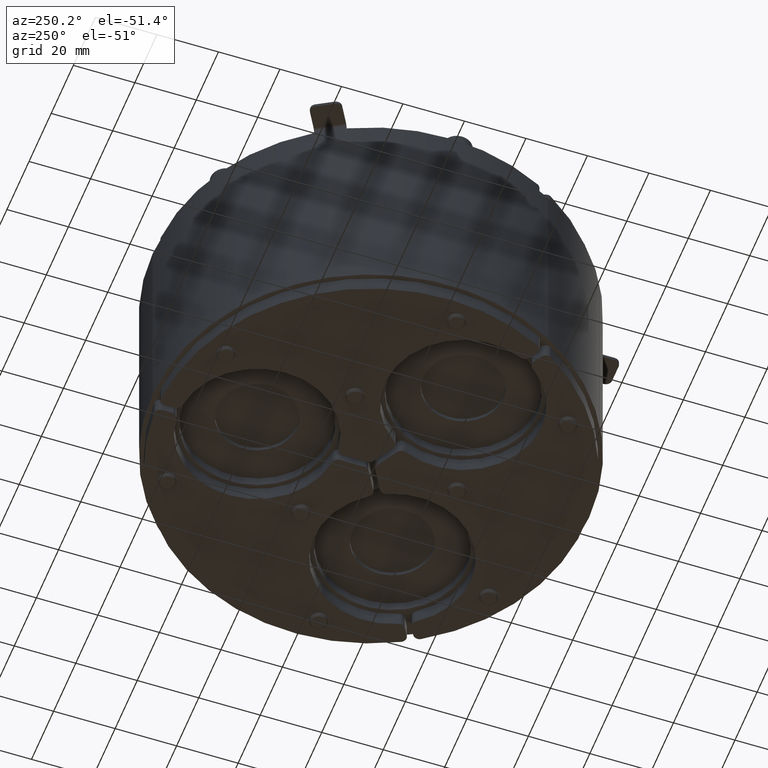
[diagram: clean part render]
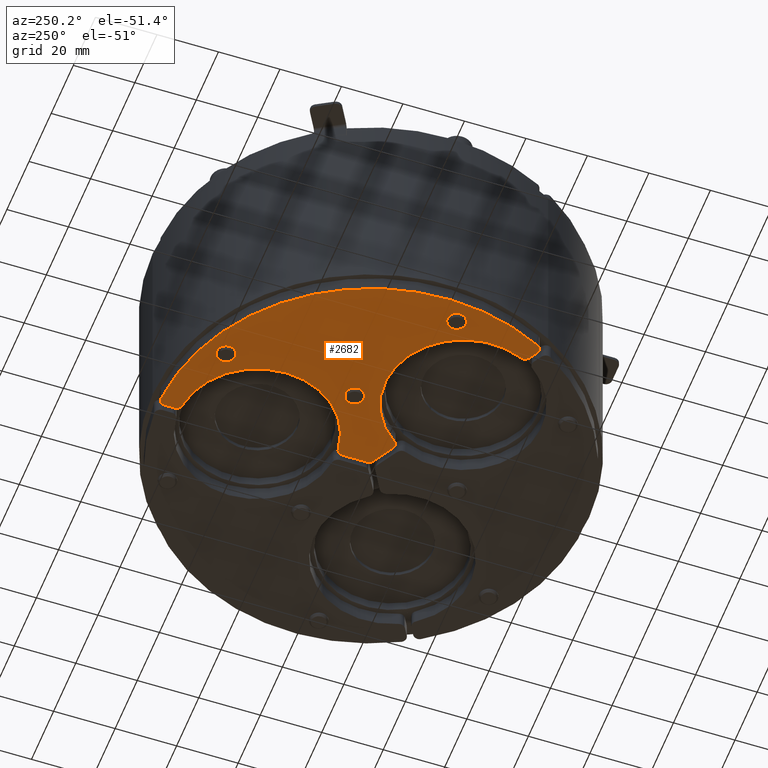
[diagram: same view with one face highlighted and labeled with its STEP entity id]
A machine part, auxiliary view. The second image highlights one B-rep face of the part: STEP entity #2682.
In plain terms, the highlighted planar face has unit normal (-0, -0, 1).
Its self-contained STEP definition (entity closure, byte-faithful):
#230=FACE_BOUND('',#529,.T.);
#231=FACE_BOUND('',#530,.T.);
#232=FACE_BOUND('',#531,.T.);
#254=PLANE('',#3097);
#362=FACE_OUTER_BOUND('',#528,.T.);
#528=EDGE_LOOP('',(#1956,#1957,#1958,#1959,#1960,#1961,#1962,#1963,#1964,
#1965,#1966,#1967,#1968,#1969));
#529=EDGE_LOOP('',(#1970));
#530=EDGE_LOOP('',(#1971));
#531=EDGE_LOOP('',(#1972));
#699=LINE('',#4324,#921);
#707=LINE('',#4364,#929);
#710=LINE('',#4372,#932);
#715=LINE('',#4388,#937);
#921=VECTOR('',#3428,10.);
#929=VECTOR('',#3470,10.);
#932=VECTOR('',#3479,10.);
#937=VECTOR('',#3498,10.);
#1137=CIRCLE('',#3055,2.4585);
#1139=CIRCLE('',#3058,2.4585);
#1141=CIRCLE('',#3061,2.4585);
#1142=CIRCLE('',#3063,2.);
#1153=CIRCLE('',#3077,2.);
#1154=CIRCLE('',#3079,25.5);
#1155=CIRCLE('',#3081,2.);
#1156=CIRCLE('',#3084,2.);
#1157=CIRCLE('',#3087,2.);
#1158=CIRCLE('',#3089,25.5);
#1159=CIRCLE('',#3091,2.);
#1160=CIRCLE('',#3094,2.);
#1161=CIRCLE('',#3096,69.5);
#1271=VERTEX_POINT('',#4295);
#1273=VERTEX_POINT('',#4301);
#1275=VERTEX_POINT('',#4307);
#1276=VERTEX_POINT('',#4311);
#1277=VERTEX_POINT('',#4312);
#1281=VERTEX_POINT('',#4322);
#1293=VERTEX_POINT('',#4350);
#1294=VERTEX_POINT('',#4354);
#1295=VERTEX_POINT('',#4358);
#1296=VERTEX_POINT('',#4362);
#1297=VERTEX_POINT('',#4366);
#1298=VERTEX_POINT('',#4370);
#1299=VERTEX_POINT('',#4374);
#1300=VERTEX_POINT('',#4378);
#1301=VERTEX_POINT('',#4382);
#1302=VERTEX_POINT('',#4386);
#1303=VERTEX_POINT('',#4390);
#1508=EDGE_CURVE('',#1271,#1271,#1137,.T.);
#1511=EDGE_CURVE('',#1273,#1273,#1139,.T.);
#1514=EDGE_CURVE('',#1275,#1275,#1141,.T.);
#1515=EDGE_CURVE('',#1276,#1277,#1142,.T.);
#1521=EDGE_CURVE('',#1276,#1281,#699,.T.);
#1534=EDGE_CURVE('',#1293,#1281,#1153,.T.);
#1537=EDGE_CURVE('',#1293,#1294,#1154,.T.);
#1538=EDGE_CURVE('',#1295,#1294,#1155,.T.);
#1541=EDGE_CURVE('',#1295,#1296,#707,.T.);
#1542=EDGE_CURVE('',#1297,#1296,#1156,.T.);
#1545=EDGE_CURVE('',#1297,#1298,#710,.T.);
#1546=EDGE_CURVE('',#1299,#1298,#1157,.T.);
#1549=EDGE_CURVE('',#1299,#1300,#1158,.T.);
#1550=EDGE_CURVE('',#1301,#1300,#1159,.T.);
#1553=EDGE_CURVE('',#1301,#1302,#715,.T.);
#1554=EDGE_CURVE('',#1303,#1302,#1160,.T.);
#1556=EDGE_CURVE('',#1303,#1277,#1161,.T.);
#1956=ORIENTED_EDGE('',*,*,#1515,.F.);
#1957=ORIENTED_EDGE('',*,*,#1521,.T.);
#1958=ORIENTED_EDGE('',*,*,#1534,.F.);
#1959=ORIENTED_EDGE('',*,*,#1537,.T.);
#1960=ORIENTED_EDGE('',*,*,#1538,.F.);
#1961=ORIENTED_EDGE('',*,*,#1541,.T.);
#1962=ORIENTED_EDGE('',*,*,#1542,.F.);
#1963=ORIENTED_EDGE('',*,*,#1545,.T.);
#1964=ORIENTED_EDGE('',*,*,#1546,.F.);
#1965=ORIENTED_EDGE('',*,*,#1549,.T.);
#1966=ORIENTED_EDGE('',*,*,#1550,.F.);
#1967=ORIENTED_EDGE('',*,*,#1553,.T.);
#1968=ORIENTED_EDGE('',*,*,#1554,.F.);
#1969=ORIENTED_EDGE('',*,*,#1556,.T.);
#1970=ORIENTED_EDGE('',*,*,#1508,.T.);
#1971=ORIENTED_EDGE('',*,*,#1511,.T.);
#1972=ORIENTED_EDGE('',*,*,#1514,.T.);
#2682=ADVANCED_FACE('',(#362,#230,#231,#232),#254,.F.);
#3055=AXIS2_PLACEMENT_3D('',#4297,#3400,#3401);
#3058=AXIS2_PLACEMENT_3D('',#4303,#3407,#3408);
#3061=AXIS2_PLACEMENT_3D('',#4309,#3414,#3415);
#3063=AXIS2_PLACEMENT_3D('',#4313,#3418,#3419);
#3077=AXIS2_PLACEMENT_3D('',#4351,#3454,#3455);
#3079=AXIS2_PLACEMENT_3D('',#4356,#3460,#3461);
#3081=AXIS2_PLACEMENT_3D('',#4359,#3464,#3465);
#3084=AXIS2_PLACEMENT_3D('',#4367,#3473,#3474);
#3087=AXIS2_PLACEMENT_3D('',#4375,#3482,#3483);
#3089=AXIS2_PLACEMENT_3D('',#4380,#3488,#3489);
#3091=AXIS2_PLACEMENT_3D('',#4383,#3492,#3493);
#3094=AXIS2_PLACEMENT_3D('',#4391,#3501,#3502);
#3096=AXIS2_PLACEMENT_3D('',#4394,#3506,#3507);
#3097=AXIS2_PLACEMENT_3D('',#4395,#3508,#3509);
#3400=DIRECTION('center_axis',(0.,0.,1.));
#3401=DIRECTION('ref_axis',(1.,0.,0.));
#3407=DIRECTION('center_axis',(0.,0.,1.));
#3408=DIRECTION('ref_axis',(1.,0.,0.));
#3414=DIRECTION('center_axis',(0.,0.,1.));
#3415=DIRECTION('ref_axis',(1.,0.,0.));
#3418=DIRECTION('center_axis',(0.,0.,1.));
#3419=DIRECTION('ref_axis',(0.691214711777594,0.722649446289291,0.));
#3428=DIRECTION('',(1.22464679914735E-16,-1.,0.));
#3454=DIRECTION('center_axis',(0.,0.,1.));
#3455=DIRECTION('ref_axis',(0.74467808786445,-0.667423812471915,0.));
#3460=DIRECTION('center_axis',(0.,0.,1.));
#3461=DIRECTION('ref_axis',(-1.,0.,0.));
#3464=DIRECTION('center_axis',(0.,0.,1.));
#3465=DIRECTION('ref_axis',(0.74467808786445,0.667423812471915,0.));
#3470=DIRECTION('',(0.,-1.,0.));
#3473=DIRECTION('center_axis',(0.,0.,1.));
#3474=DIRECTION('ref_axis',(0.866025403784439,-0.5,0.));
#3479=DIRECTION('',(-0.866025403784439,-0.5,0.));
#3482=DIRECTION('center_axis',(0.,0.,1.));
#3483=DIRECTION('ref_axis',(-0.205666932759117,-0.978622047968191,0.));
#3488=DIRECTION('center_axis',(0.,0.,1.));
#3489=DIRECTION('ref_axis',(-1.,0.,0.));
#3492=DIRECTION('center_axis',(0.,0.,1.));
#3493=DIRECTION('ref_axis',(0.950345020623565,-0.311198235496277,0.));
#3498=DIRECTION('',(-0.866025403784439,-0.499999999999999,0.));
#3501=DIRECTION('center_axis',(0.,0.,1.));
#3502=DIRECTION('ref_axis',(-0.280225422628497,-0.959934223013577,0.));
#3506=DIRECTION('center_axis',(0.,0.,-1.));
#3507=DIRECTION('ref_axis',(1.,0.,0.));
#3508=DIRECTION('center_axis',(0.,0.,1.));
#3509=DIRECTION('ref_axis',(1.,0.,0.));
#4295=CARTESIAN_POINT('',(-28.8721413587937,56.6442366897906,-5.));
#4297=CARTESIAN_POINT('Origin',(-26.4136413587937,56.6442366897906,-5.));
#4301=CARTESIAN_POINT('',(-64.7206686307341,-5.44723392172858,-5.));
#4303=CARTESIAN_POINT('Origin',(-62.2621686307341,-5.44723392172858,-5.));
#4307=CARTESIAN_POINT('',(-26.7072113059643,14.,-5.));
#4309=CARTESIAN_POINT('Origin',(-24.2487113059643,14.,-5.));
#4311=CARTESIAN_POINT('',(-0.999999999999997,67.4333003789671,-5.));
#4312=CARTESIAN_POINT('',(-3.08888888888889,69.4313240938994,-5.));
#4313=CARTESIAN_POINT('Origin',(-3.,67.4333003789671,-5.));
#4322=CARTESIAN_POINT('',(-0.999999999999997,64.3358738656733,-5.));
#4324=CARTESIAN_POINT('',(-0.999999999999994,45.5524622482651,-5.));
#4350=CARTESIAN_POINT('',(-2.78181818181818,62.3478103118062,-5.));
#4351=CARTESIAN_POINT('Origin',(-2.99999999999999,64.3358738656733,-5.));
#4354=CARTESIAN_POINT('',(-2.78181818181818,11.6521896881939,-5.));
#4356=CARTESIAN_POINT('Origin',(0.,37.,-5.));
#4358=CARTESIAN_POINT('',(-1.,9.6641261343267,-5.));
#4359=CARTESIAN_POINT('Origin',(-3.,9.6641261343267,-5.));
#4362=CARTESIAN_POINT('',(-1.,1.73205080756888,-5.));
#4364=CARTESIAN_POINT('',(-1.,16.552462248265,-5.));
#4366=CARTESIAN_POINT('',(-2.,-2.77555756156289E-15,-5.));
#4367=CARTESIAN_POINT('Origin',(-3.,1.73205080756888,-5.));
#4370=CARTESIAN_POINT('',(-8.86937873770403,-3.96603766337891,-5.));
#4372=CARTESIAN_POINT('',(-9.2056969906694,-4.16021109726185,-5.));
#4374=CARTESIAN_POINT('',(-11.4820013706,-3.41696962993294,-5.));
#4375=CARTESIAN_POINT('Origin',(-9.86937873770403,-2.23398685581004,-5.));
#4378=CARTESIAN_POINT('',(-55.3856966912666,-28.7647799417391,-5.));
#4380=CARTESIAN_POINT('Origin',(-32.0429399400242,-18.5,-5.));
#4382=CARTESIAN_POINT('',(-56.2165011423444,-31.3019115290522,-5.));
#4383=CARTESIAN_POINT('Origin',(-57.2165011423444,-29.5698607214833,-5.));
#4386=CARTESIAN_POINT('',(-58.8989511892123,-32.8506247856991,-5.));
#4388=CARTESIAN_POINT('',(-35.6194718060948,-19.4102110972619,-5.));
#4390=CARTESIAN_POINT('',(-61.6737349281519,-32.0406057997044,-5.));
#4391=CARTESIAN_POINT('Origin',(-59.8989511892123,-31.1185739781302,-5.));
#4394=CARTESIAN_POINT('Origin',(0.,0.,-5.));
#4395=CARTESIAN_POINT('Origin',(-34.8227755452271,20.1049244965301,-5.));